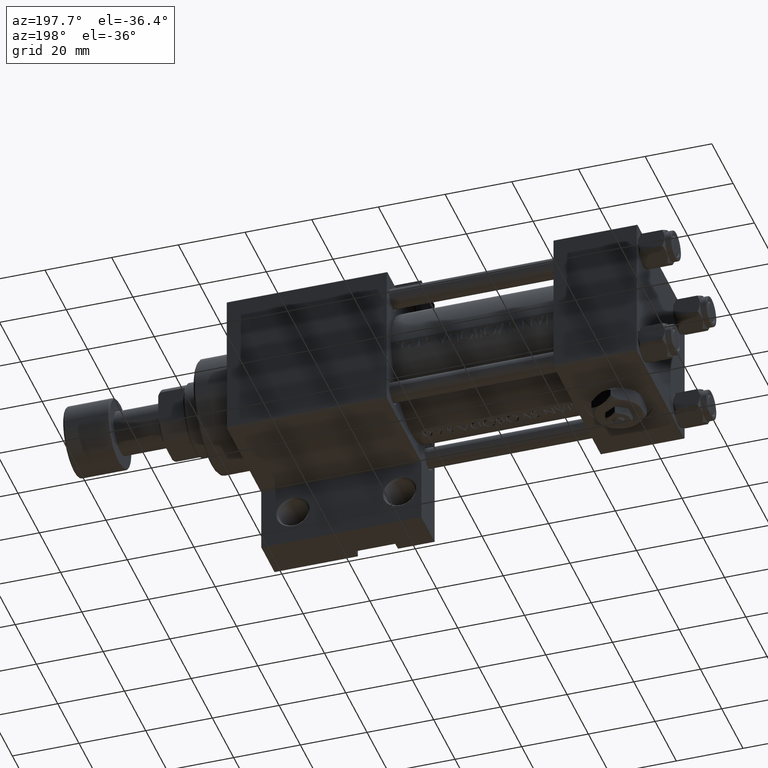
[diagram: clean part render]
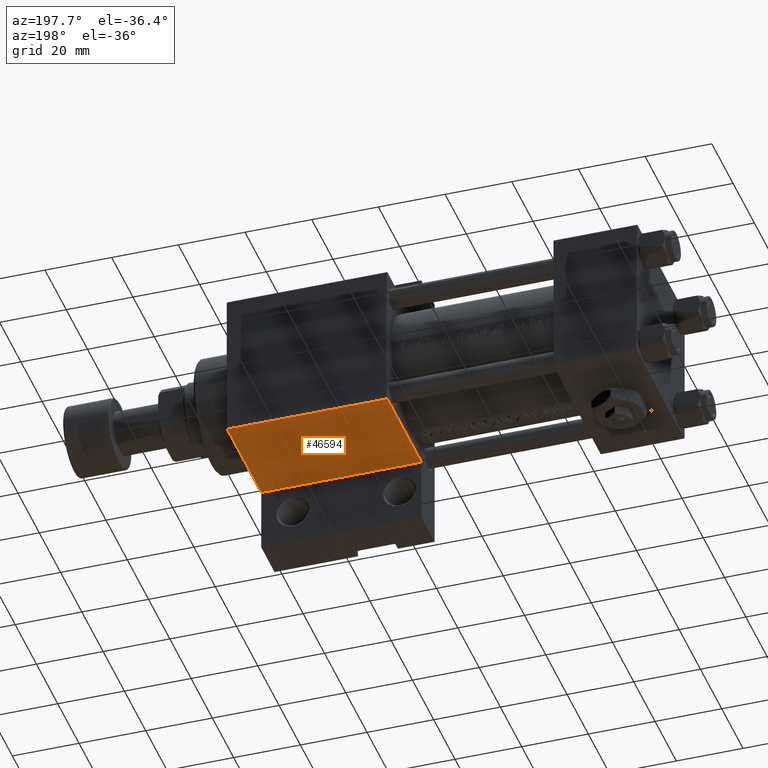
[diagram: same view with one face highlighted and labeled with its STEP entity id]
A machine part, auxiliary view. The second image highlights one B-rep face of the part: STEP entity #46594.
In plain terms, the highlighted planar face has unit normal (0, 0, -1).
Its self-contained STEP definition (entity closure, byte-faithful):
#710 = VECTOR ( 'NONE', #4115, 1000.000000000000000 ) ;
#1524 = CARTESIAN_POINT ( 'NONE',  ( 123.0000000000000142, 22.50000000000000355, 21.99999999999998934 ) ) ;
#4115 = DIRECTION ( 'NONE',  ( -1.000000000000000000, 1.445602896647340149E-16, -0.000000000000000000 ) ) ;
#5063 = EDGE_CURVE ( 'NONE', #7398, #26380, #33885, .T. ) ;
#5694 = VECTOR ( 'NONE', #45739, 1000.000000000000000 ) ;
#7398 = VERTEX_POINT ( 'NONE', #46739 ) ;
#7656 = DIRECTION ( 'NONE',  ( 0.000000000000000000, -0.000000000000000000, 1.000000000000000000 ) ) ;
#10235 = LINE ( 'NONE', #14270, #5694 ) ;
#11851 = VERTEX_POINT ( 'NONE', #1524 ) ;
#12161 = EDGE_LOOP ( 'NONE', ( #23353, #38945, #36667, #32891 ) ) ;
#13016 = CARTESIAN_POINT ( 'NONE',  ( 122.9999999999999858, 22.49999999999999289, -9.999999999999998224 ) ) ;
#14270 = CARTESIAN_POINT ( 'NONE',  ( 123.0000000000000142, 22.50000000000000355, 21.99999999999998934 ) ) ;
#14755 = DIRECTION ( 'NONE',  ( 0.000000000000000000, 0.000000000000000000, -1.000000000000000000 ) ) ;
#16983 = EDGE_CURVE ( 'NONE', #7398, #11851, #10235, .T. ) ;
#19290 = EDGE_CURVE ( 'NONE', #11851, #44134, #35934, .T. ) ;
#22984 = AXIS2_PLACEMENT_3D ( 'NONE', #28167, #24370, #7656 ) ;
#23263 = LINE ( 'NONE', #38619, #710 ) ;
#23353 = ORIENTED_EDGE ( 'NONE', *, *, #5063, .F. ) ;
#24129 = PLANE ( 'NONE',  #22984 ) ;
#24370 = DIRECTION ( 'NONE',  ( -0.000000000000000000, 1.000000000000000000, 0.000000000000000000 ) ) ;
#26380 = VERTEX_POINT ( 'NONE', #47608 ) ;
#27633 = CARTESIAN_POINT ( 'NONE',  ( 123.0000000000000142, 22.50000000000000355, 22.50000000000000355 ) ) ;
#28167 = CARTESIAN_POINT ( 'NONE',  ( 123.0000000000000142, 22.50000000000000355, 22.50000000000000355 ) ) ;
#32891 = ORIENTED_EDGE ( 'NONE', *, *, #38249, .T. ) ;
#33885 = LINE ( 'NONE', #48734, #44493 ) ;
#35431 = DIRECTION ( 'NONE',  ( 0.000000000000000000, 0.000000000000000000, -1.000000000000000000 ) ) ;
#35934 = LINE ( 'NONE', #27633, #40392 ) ;
#36667 = ORIENTED_EDGE ( 'NONE', *, *, #19290, .T. ) ;
#37382 = FACE_OUTER_BOUND ( 'NONE', #12161, .T. ) ;
#38249 = EDGE_CURVE ( 'NONE', #44134, #26380, #23263, .T. ) ;
#38619 = CARTESIAN_POINT ( 'NONE',  ( 75.00000000000001421, 22.50000000000000000, -9.999999999999998224 ) ) ;
#38945 = ORIENTED_EDGE ( 'NONE', *, *, #16983, .T. ) ;
#40392 = VECTOR ( 'NONE', #35431, 1000.000000000000000 ) ;
#44134 = VERTEX_POINT ( 'NONE', #13016 ) ;
#44493 = VECTOR ( 'NONE', #14755, 1000.000000000000000 ) ;
#45739 = DIRECTION ( 'NONE',  ( 1.000000000000000000, 0.000000000000000000, 0.000000000000000000 ) ) ;
#46594 = ADVANCED_FACE ( 'NONE', ( #37382 ), #24129, .T. ) ;
#46739 = CARTESIAN_POINT ( 'NONE',  ( 75.00000000000001421, 22.50000000000000355, 21.99999999999998934 ) ) ;
#47608 = CARTESIAN_POINT ( 'NONE',  ( 75.00000000000001421, 22.50000000000000355, -9.999999999999984013 ) ) ;
#48734 = CARTESIAN_POINT ( 'NONE',  ( 75.00000000000001421, 22.50000000000000355, 22.50000000000000355 ) ) ;